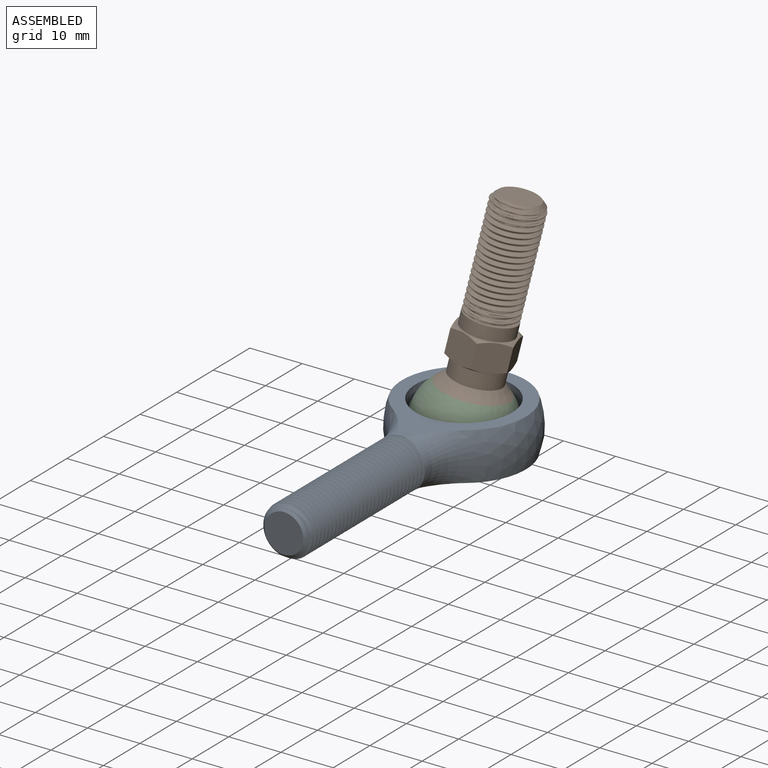
[diagram: assembled view]
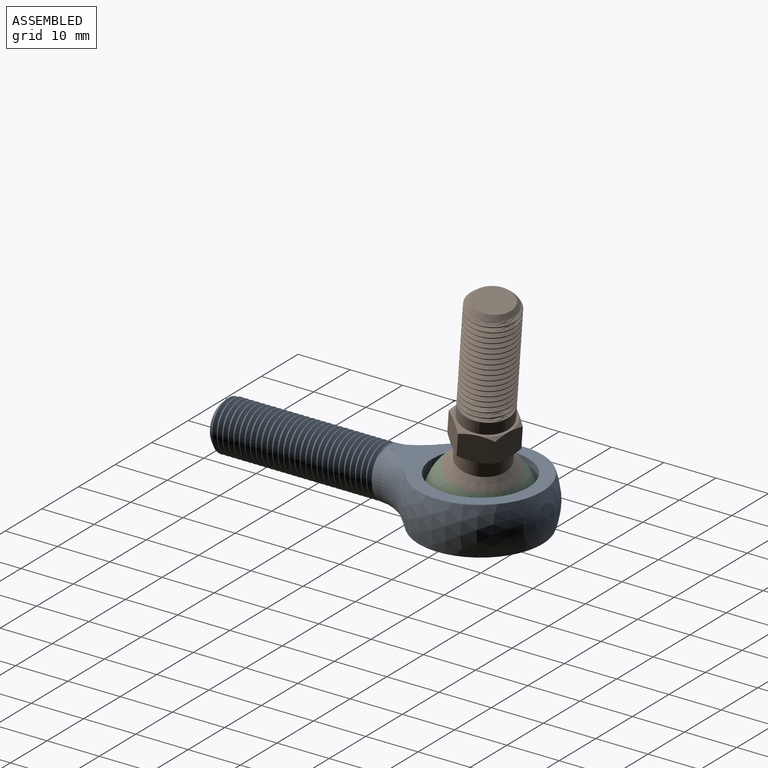
[diagram: assembled view, second angle]
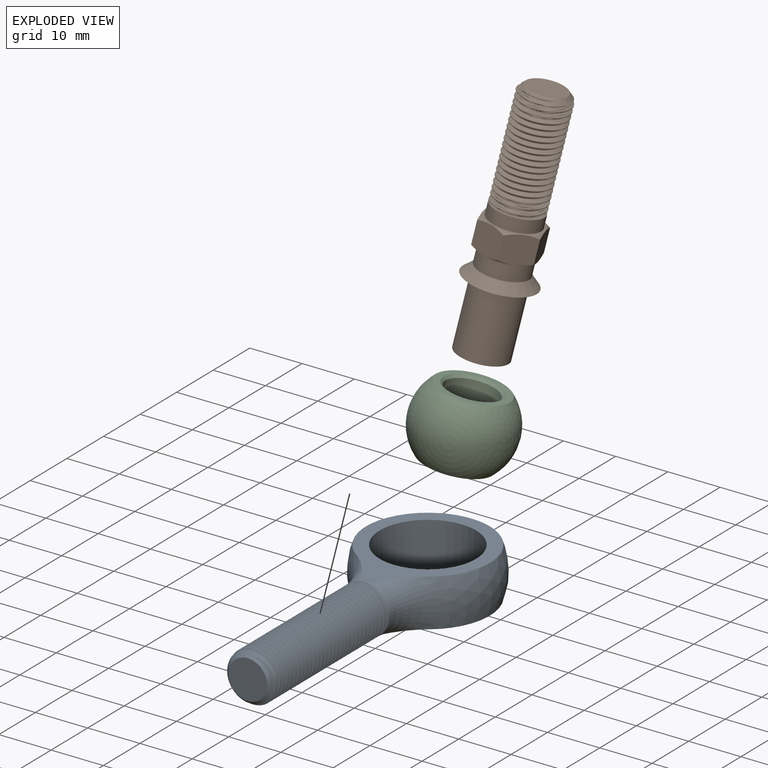
[diagram: exploded view]
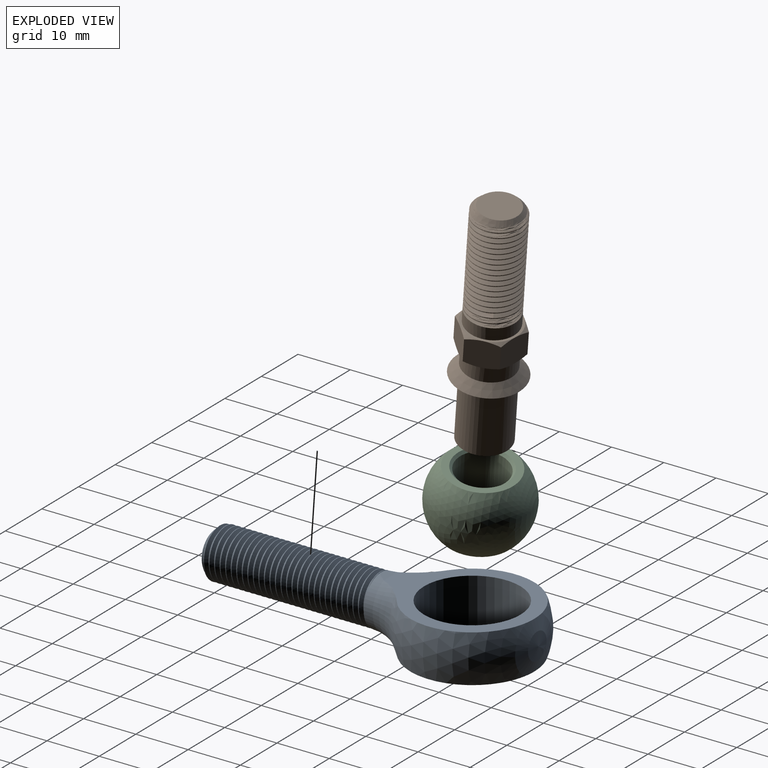
[diagram: exploded view, second angle]
ASSEMBLY  parts=3 mates=2
PART A: 15 faces, bbox 33.5x62.6x33.5 mm
  f0: torus R=15.24mm, axis (0,-1,0), area 100.6mm2, adj f8,f9,f10,f11,f12,f13
  f1: cylinder r=4.76mm len=30.69mm, axis (0,1,0), area 115mm2, adj f2,f4,f6,f7
  f2: cone r=4.76mm half-angle=45deg, axis (0,1,0), area 26mm2, adj f1,f3,f4,f5,f6
  f3: plane 7.41x7.41mm, normal (0,-1,0), area 43.1mm2, adj f2
  f4: bspline ~32.28x9.53mm, area 648.2mm2, adj f1,f2,f5,f9
  f5: bspline ~31.75x8.15mm, area 100.8mm2, adj f2,f4,f6,f9
  f6: bspline ~31.88x9.53mm, area 648.5mm2, adj f1,f2,f5,f9
  f7: torus R=15.24mm, axis (0,-1,0), area 100.6mm2, adj f1,f8,f9,f10,f11,f12,f13
  f8: sphere r=12.7mm, area 567.7mm2, adj f0,f7,f10,f12
  f9: plane 9.95x9.95mm, normal (0,-1,0), area 9.7mm2, adj f0,f4,f5,f6,f7
  f10: plane 28.02x24.23mm, normal (0,0,1), area 201.2mm2, adj f0,f7,f8,f11,f14
  f11: plane 4.14x2.26mm, normal (0,0.11,0.99), area 4.1mm2, adj f0,f7,f10
  f12: plane 28.03x24.24mm, normal (0,0,-1), area 201.2mm2, adj f0,f7,f8,f13,f14
  f13: plane 4.14x2.26mm, normal (0,0.11,-0.99), area 4.1mm2, adj f0,f7,f12
  f14: cylinder r=9.22mm len=18.45mm, axis (0,0,1), area 528.4mm2, adj f10,f12
PART B: 50 faces, bbox 13.6x13.6x46.7 mm
  f0: plane 5.8x5.74mm, normal (-0.5,0.87,0), area 30.1mm2, adj f1,f5,f32,f33,f38,f43
  f1: plane 6.55x5.79mm, normal (-1,0,0), area 30.1mm2, adj f0,f2,f33,f34,f42,f43
  f2: plane 5.8x5.74mm, normal (-0.5,-0.87,0), area 30.1mm2, adj f1,f3,f34,f35,f41,f42
  f3: plane 5.8x5.74mm, normal (0.5,-0.87,0), area 30.1mm2, adj f2,f4,f35,f36,f40,f41
  f4: plane 6.55x5.79mm, normal (1,0,0), area 30.1mm2, adj f3,f5,f36,f37,f39,f40
  f5: plane 5.8x5.74mm, normal (0.5,0.87,0), area 30.1mm2, adj f0,f4,f32,f37,f38,f39
  f6: plane 10.48x10.48mm, normal (0,0,1), area 15mm2, adj f7,f32,f33,f34,f35,f36,f37
  f7: cylinder r=4.76mm len=9.53mm, axis (0,0,1), area 75.2mm2, adj f6,f8,f28,f30,f31
  f8: cylinder r=4.76mm len=9.53mm, axis (0,0,1), area 4mm2, adj f7,f9,f28,f30
  f9: cylinder r=4.76mm len=9.53mm, axis (0,0,1), area 4mm2, adj f8,f10,f28,f30
  f10: cylinder r=4.76mm len=9.53mm, axis (0,0,1), area 4mm2, adj f9,f11,f28,f30
  f11: cylinder r=4.76mm len=9.53mm, axis (0,0,1), area 4mm2, adj f10,f12,f28,f30
  f12: cylinder r=4.76mm len=9.53mm, axis (0,0,1), area 4mm2, adj f11,f13,f28,f30
  f13: cylinder r=4.76mm len=9.53mm, axis (0,0,1), area 4mm2, adj f12,f14,f28,f30
  f14: cylinder r=4.76mm len=9.53mm, axis (0,0,1), area 4mm2, adj f13,f15,f28,f30
  f15: cylinder r=4.76mm len=9.53mm, axis (0,0,1), area 4mm2, adj f14,f16,f28,f30
  f16: cylinder r=4.76mm len=9.53mm, axis (0,0,1), area 4mm2, adj f15,f17,f28,f30
  f17: cylinder r=4.76mm len=9.53mm, axis (0,0,1), area 4mm2, adj f16,f18,f28,f30
  f18: cylinder r=4.76mm len=9.53mm, axis (0,0,1), area 4mm2, adj f17,f19,f28,f30
  f19: cylinder r=4.76mm len=9.53mm, axis (0,0,1), area 4mm2, adj f18,f20,f28,f30
  f20: cylinder r=4.76mm len=9.53mm, axis (0,0,1), area 4mm2, adj f19,f21,f28,f30
  f21: cylinder r=4.76mm len=9.53mm, axis (0,0,1), area 4mm2, adj f20,f22,f28,f30
  f22: cylinder r=4.76mm len=9.53mm, axis (0,0,1), area 4mm2, adj f21,f23,f28,f30
  f23: cylinder r=4.76mm len=9.53mm, axis (0,0,1), area 4mm2, adj f22,f24,f28,f30
  f24: cylinder r=4.76mm len=9.53mm, axis (0,0,1), area 4mm2, adj f23,f25,f28,f30
  f25: cylinder r=4.76mm len=9.51mm, axis (0,0,1), area 2.2mm2, adj f24,f26,f28,f30
  f26: cone r=3.7mm half-angle=45deg, axis (0,0,-1), area 26mm2, adj f25,f27,f28,f29,f30
  f27: plane 7.41x7.41mm, normal (0,0,1), area 43.1mm2, adj f26
  f28: bspline ~20.65x9.52mm, area 414.5mm2, adj f7,f8,f9,f10,f11,f12,f13,f14
  f29: bspline ~20.77x8.15mm, area 65mm2, adj f26,f28,f30,f31
  f30: bspline ~21.3x9.53mm, area 415.6mm2, adj f7,f8,f9,f10,f11,f12,f13,f14
  f31: plane 9.95x9.95mm, normal (0,0,1), area 9.7mm2, adj f7,f28,f29,f30
  f32: cone r=5.24mm half-angle=60deg, axis (0,0,-1), area 2.7mm2, adj f0,f5,f6
  f33: cone r=5.24mm half-angle=60deg, axis (0,0,-1), area 2.7mm2, adj f0,f1,f6
  f34: cone r=5.24mm half-angle=60deg, axis (0,0,-1), area 2.7mm2, adj f1,f2,f6
  f35: cone r=5.24mm half-angle=60deg, axis (0,0,-1), area 2.7mm2, adj f2,f3,f6
  f36: cone r=5.24mm half-angle=60deg, axis (0,0,-1), area 2.7mm2, adj f3,f4,f6
  f37: cone r=5.24mm half-angle=60deg, axis (0,0,-1), area 2.7mm2, adj f4,f5,f6
  f38: cone r=5.24mm half-angle=60deg, axis (0,0,1), area 2.7mm2, adj f0,f5,f45
  f39: cone r=5.24mm half-angle=60deg, axis (0,0,1), area 2.7mm2, adj f4,f5,f45
  f40: cone r=5.24mm half-angle=60deg, axis (0,0,1), area 2.7mm2, adj f3,f4,f45
  f41: cone r=5.24mm half-angle=60deg, axis (0,0,1), area 2.7mm2, adj f2,f3,f45
  f42: cone r=5.24mm half-angle=60deg, axis (0,0,1), area 2.7mm2, adj f1,f2,f45
  f43: cone r=5.24mm half-angle=60deg, axis (0,0,1), area 2.7mm2, adj f0,f1,f45
  f44: cylinder r=4.76mm len=9.53mm, axis (0,0,1), area 92.6mm2, adj f45,f47
  f45: plane 10.48x10.48mm, normal (0,0,-1), area 15mm2, adj f38,f39,f40,f41,f42,f43,f44
  f46: plane 13.12x13.12mm, normal (0,0,-1), area 64mm2, adj f47,f49
  f47: cone r=6.56mm half-angle=45deg, axis (0,0,-1), area 90.5mm2, adj f44,f46
  f48: plane 9.53x9.53mm, normal (0,0,-1), area 71.3mm2, adj f49
  f49: cylinder r=4.76mm len=12.83mm, axis (0,0,1), area 383.8mm2, adj f46,f48
PART C: 6 faces, bbox 18.3x18.3x18.3 mm
  f0: sphere r=9.13mm, area 728.6mm2, adj f1,f2
  f1: plane 13.12x13.12mm, normal (0,0,1), area 49.1mm2, adj f0,f5
  f2: plane 13.12x13.12mm, normal (0,0,-1), area 49.1mm2, adj f0,f4
  f3: cylinder r=4.76mm len=11.75mm, axis (0,0,1), area 351.5mm2, adj f4,f5
  f4: cone r=5.24mm half-angle=45deg, axis (0,0,-1), area 21.2mm2, adj f2,f3
  f5: cone r=4.76mm half-angle=45deg, axis (0,0,1), area 21.2mm2, adj f1,f3
PLACE A t=(21.57,24.59,18.2)mm fixed
PLACE B rot(axis=(-0.35,0.45,0.82),23.3deg) t=(27.44,25.7,20)mm
PLACE C rot(axis=(-0.35,0.45,0.82),23.3deg) t=(27.46,25.73,20.12)mm
MATE ball C.f3 <-> A.f14  axis (0.15,0.17,0.97) through (21.57,42.05,18.2)mm
MATE fastened B.f7 <-> C.f3  axis (-0.15,-0.17,-0.97) through (22.54,43.13,24.39)mm
